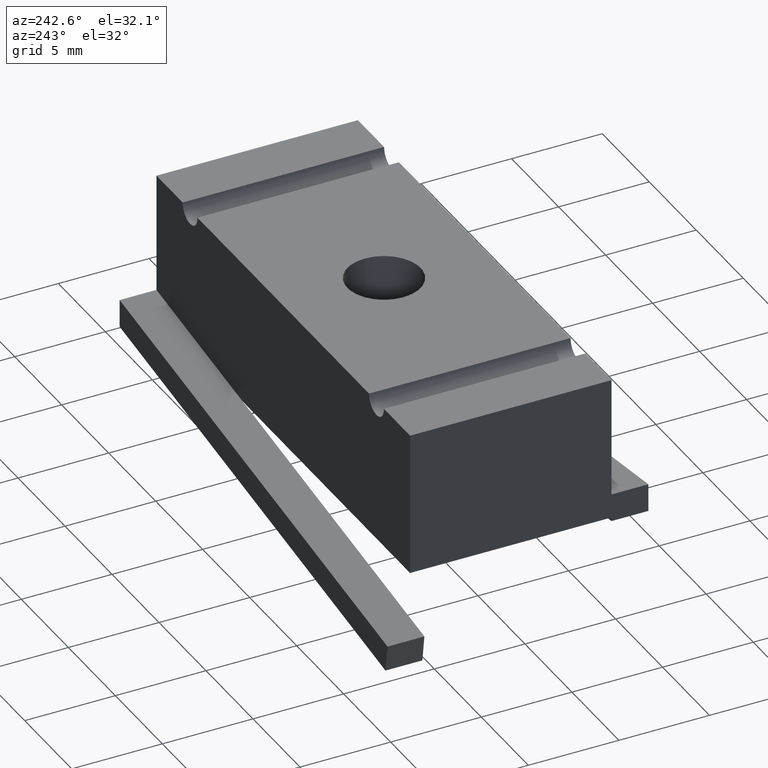
[diagram: clean part render]
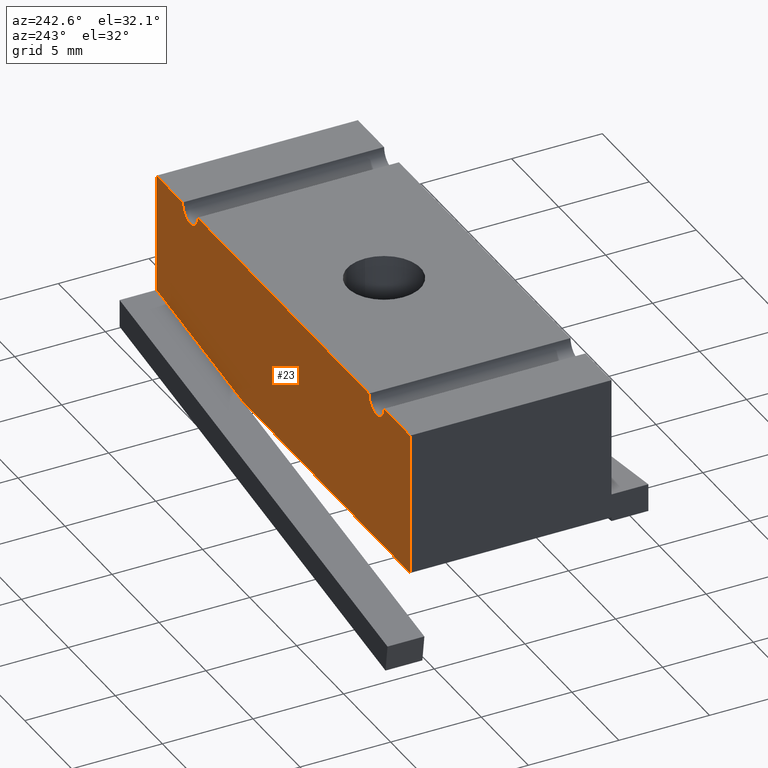
[diagram: same view with one face highlighted and labeled with its STEP entity id]
A machine part, auxiliary view. The second image highlights one B-rep face of the part: STEP entity #23.
In plain terms, the highlighted planar face has unit normal (0, 1, 0).
Its self-contained STEP definition (entity closure, byte-faithful):
#23 = ADVANCED_FACE ( 'NONE', ( #57 ), #364, .T. ) ;
#57 = FACE_OUTER_BOUND ( 'NONE', #192, .T. ) ;
#59 = LINE ( 'NONE', #418, #811 ) ;
#97 = ORIENTED_EDGE ( 'NONE', *, *, #674, .T. ) ;
#114 = ORIENTED_EDGE ( 'NONE', *, *, #666, .F. ) ;
#119 = ORIENTED_EDGE ( 'NONE', *, *, #700, .F. ) ;
#122 = ORIENTED_EDGE ( 'NONE', *, *, #663, .F. ) ;
#124 = ORIENTED_EDGE ( 'NONE', *, *, #714, .F. ) ;
#128 = ORIENTED_EDGE ( 'NONE', *, *, #657, .F. ) ;
#129 = ORIENTED_EDGE ( 'NONE', *, *, #696, .F. ) ;
#130 = ORIENTED_EDGE ( 'NONE', *, *, #698, .F. ) ;
#178 = ORIENTED_EDGE ( 'NONE', *, *, #668, .F. ) ;
#179 = ORIENTED_EDGE ( 'NONE', *, *, #716, .T. ) ;
#180 = ORIENTED_EDGE ( 'NONE', *, *, #648, .F. ) ;
#192 = EDGE_LOOP ( 'NONE', ( #180, #179, #97, #128, #129, #130, #124, #122, #119, #114, #178 ) ) ;
#250 = VERTEX_POINT ( 'NONE', #376 ) ;
#251 = VERTEX_POINT ( 'NONE', #382 ) ;
#252 = VERTEX_POINT ( 'NONE', #375 ) ;
#256 = VERTEX_POINT ( 'NONE', #380 ) ;
#267 = VERTEX_POINT ( 'NONE', #395 ) ;
#269 = VERTEX_POINT ( 'NONE', #397 ) ;
#271 = VERTEX_POINT ( 'NONE', #399 ) ;
#273 = VERTEX_POINT ( 'NONE', #401 ) ;
#278 = VERTEX_POINT ( 'NONE', #406 ) ;
#280 = VERTEX_POINT ( 'NONE', #408 ) ;
#281 = VERTEX_POINT ( 'NONE', #409 ) ;
#359 = CARTESIAN_POINT ( 'NONE',  ( -0.5312500000000000000, 0.2187500000000000300, -0.3125000000000000000 ) ) ;
#364 = PLANE ( 'NONE',  #723 ) ;
#369 = DIRECTION ( 'NONE',  ( 0.0000000000000000000, 1.000000000000000000, 0.0000000000000000000 ) ) ;
#370 = DIRECTION ( 'NONE',  ( 0.0000000000000000000, -0.0000000000000000000, 1.000000000000000000 ) ) ;
#375 = CARTESIAN_POINT ( 'NONE',  ( -0.3906250000000000000, 0.2187500000000000300, -0.03124999999999997900 ) ) ;
#376 = CARTESIAN_POINT ( 'NONE',  ( 0.3903750000000000800, 0.2187500000000000300, -0.03124999999999997900 ) ) ;
#380 = CARTESIAN_POINT ( 'NONE',  ( -0.5312500000000000000, 0.2187500000000000300, -0.3125000000000000000 ) ) ;
#382 = CARTESIAN_POINT ( 'NONE',  ( -0.3593750000000000600, 0.2187500000000000300, 0.0000000000000000000 ) ) ;
#395 = CARTESIAN_POINT ( 'NONE',  ( -0.5312500000000000000, 0.2187500000000000300, 0.0000000000000000000 ) ) ;
#397 = CARTESIAN_POINT ( 'NONE',  ( 0.5312500000000000000, 0.2187500000000000300, -0.2600000000000000100 ) ) ;
#399 = CARTESIAN_POINT ( 'NONE',  ( 0.1708142201834721700, 0.2187500000000000300, -0.3125000000000010500 ) ) ;
#401 = CARTESIAN_POINT ( 'NONE',  ( 0.5312500000000000000, 0.2187500000000000300, 0.0000000000000000000 ) ) ;
#406 = CARTESIAN_POINT ( 'NONE',  ( 0.4216250000000000300, 0.2187500000000000300, 0.0000000000000000000 ) ) ;
#408 = CARTESIAN_POINT ( 'NONE',  ( -0.4218750000000000000, 0.2187500000000000300, 0.0000000000000000000 ) ) ;
#409 = CARTESIAN_POINT ( 'NONE',  ( 0.3591250000000000800, 0.2187500000000000300, 0.0000000000000000000 ) ) ;
#418 = CARTESIAN_POINT ( 'NONE',  ( 0.5312500000000000000, 0.2187500000000000300, -0.2600000000000000100 ) ) ;
#419 = DIRECTION ( 'NONE',  ( 0.9895578809525748000, -0.0000000000000000000, 0.1441360476933149500 ) ) ;
#436 = CARTESIAN_POINT ( 'NONE',  ( -0.5312500000000000000, 0.2187500000000000300, 0.0000000000000000000 ) ) ;
#439 = DIRECTION ( 'NONE',  ( -1.000000000000000000, -0.0000000000000000000, -0.0000000000000000000 ) ) ;
#449 = CARTESIAN_POINT ( 'NONE',  ( 0.3903750000000000800, 0.2187500000000000300, 0.0000000000000000000 ) ) ;
#451 = DIRECTION ( 'NONE',  ( 0.0000000000000000000, 1.000000000000000000, 0.0000000000000000000 ) ) ;
#452 = DIRECTION ( 'NONE',  ( 0.0000000000000000000, 0.0000000000000000000, 1.000000000000000000 ) ) ;
#457 = CARTESIAN_POINT ( 'NONE',  ( -0.5312500000000000000, 0.2187500000000000300, 0.0000000000000000000 ) ) ;
#458 = DIRECTION ( 'NONE',  ( -1.000000000000000000, -0.0000000000000000000, -0.0000000000000000000 ) ) ;
#461 = CARTESIAN_POINT ( 'NONE',  ( 0.5312500000000000000, 0.2187500000000000300, -0.3125000000000000000 ) ) ;
#462 = DIRECTION ( 'NONE',  ( 0.0000000000000000000, 0.0000000000000000000, 1.000000000000000000 ) ) ;
#471 = CARTESIAN_POINT ( 'NONE',  ( -0.5312500000000000000, 0.2187500000000000300, -0.3125000000000000000 ) ) ;
#472 = DIRECTION ( 'NONE',  ( 0.0000000000000000000, 0.0000000000000000000, 1.000000000000000000 ) ) ;
#502 = CARTESIAN_POINT ( 'NONE',  ( -0.3906250000000000000, 0.2187500000000000300, 0.0000000000000000000 ) ) ;
#507 = CARTESIAN_POINT ( 'NONE',  ( -0.3906250000000000000, 0.2187500000000000300, 0.0000000000000000000 ) ) ;
#518 = CARTESIAN_POINT ( 'NONE',  ( 0.3903750000000000800, 0.2187500000000000300, 0.0000000000000000000 ) ) ;
#519 = DIRECTION ( 'NONE',  ( 0.0000000000000000000, 1.000000000000000000, 0.0000000000000000000 ) ) ;
#520 = DIRECTION ( 'NONE',  ( 0.0000000000000000000, 0.0000000000000000000, 1.000000000000000000 ) ) ;
#522 = DIRECTION ( 'NONE',  ( 0.0000000000000000000, 1.000000000000000000, 0.0000000000000000000 ) ) ;
#523 = DIRECTION ( 'NONE',  ( 0.0000000000000000000, 0.0000000000000000000, 1.000000000000000000 ) ) ;
#527 = DIRECTION ( 'NONE',  ( 0.0000000000000000000, 1.000000000000000000, 0.0000000000000000000 ) ) ;
#528 = DIRECTION ( 'NONE',  ( 0.0000000000000000000, 0.0000000000000000000, 1.000000000000000000 ) ) ;
#542 = CARTESIAN_POINT ( 'NONE',  ( -0.5312500000000000000, 0.2187500000000000300, 0.0000000000000000000 ) ) ;
#543 = DIRECTION ( 'NONE',  ( -1.000000000000000000, -0.0000000000000000000, -0.0000000000000000000 ) ) ;
#547 = CARTESIAN_POINT ( 'NONE',  ( -0.5312500000000000000, 0.2187500000000000300, -0.3125000000000000000 ) ) ;
#584 = LINE ( 'NONE', #461, #585 ) ;
#585 = VECTOR ( 'NONE', #462, 39.37007874015748100 ) ;
#593 = LINE ( 'NONE', #471, #594 ) ;
#594 = VECTOR ( 'NONE', #472, 39.37007874015748100 ) ;
#628 = CIRCLE ( 'NONE', #734, 0.03124999999999997900 ) ;
#630 = CIRCLE ( 'NONE', #677, 0.03124999999999997900 ) ;
#631 = LINE ( 'NONE', #542, #640 ) ;
#632 = CIRCLE ( 'NONE', #763, 0.03124999999999997900 ) ;
#639 = LINE ( 'NONE', #547, #642 ) ;
#640 = VECTOR ( 'NONE', #543, 39.37007874015748100 ) ;
#642 = VECTOR ( 'NONE', #786, 39.37007874015748100 ) ;
#648 = EDGE_CURVE ( 'NONE', #271, #269, #59, .T. ) ;
#657 = EDGE_CURVE ( 'NONE', #280, #267, #822, .T. ) ;
#663 = EDGE_CURVE ( 'NONE', #250, #281, #779, .T. ) ;
#666 = EDGE_CURVE ( 'NONE', #273, #278, #782, .T. ) ;
#668 = EDGE_CURVE ( 'NONE', #269, #273, #584, .T. ) ;
#674 = EDGE_CURVE ( 'NONE', #256, #267, #593, .T. ) ;
#677 = AXIS2_PLACEMENT_3D ( 'NONE', #507, #522, #523 ) ;
#696 = EDGE_CURVE ( 'NONE', #252, #280, #628, .T. ) ;
#698 = EDGE_CURVE ( 'NONE', #251, #252, #630, .T. ) ;
#700 = EDGE_CURVE ( 'NONE', #278, #250, #632, .T. ) ;
#714 = EDGE_CURVE ( 'NONE', #281, #251, #631, .T. ) ;
#716 = EDGE_CURVE ( 'NONE', #271, #256, #639, .T. ) ;
#723 = AXIS2_PLACEMENT_3D ( 'NONE', #359, #369, #370 ) ;
#734 = AXIS2_PLACEMENT_3D ( 'NONE', #502, #519, #520 ) ;
#763 = AXIS2_PLACEMENT_3D ( 'NONE', #518, #527, #528 ) ;
#765 = AXIS2_PLACEMENT_3D ( 'NONE', #449, #451, #452 ) ;
#779 = CIRCLE ( 'NONE', #765, 0.03124999999999997900 ) ;
#782 = LINE ( 'NONE', #457, #783 ) ;
#783 = VECTOR ( 'NONE', #458, 39.37007874015748100 ) ;
#786 = DIRECTION ( 'NONE',  ( -1.000000000000000000, -0.0000000000000000000, -0.0000000000000000000 ) ) ;
#811 = VECTOR ( 'NONE', #419, 39.37007874015748900 ) ;
#822 = LINE ( 'NONE', #436, #829 ) ;
#829 = VECTOR ( 'NONE', #439, 39.37007874015748100 ) ;